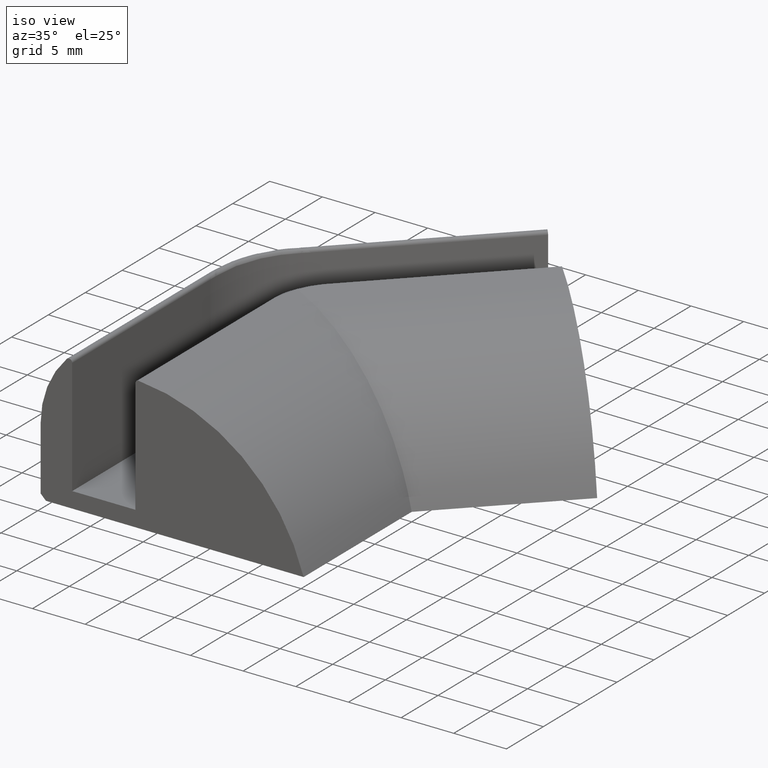
[diagram: clean part render]
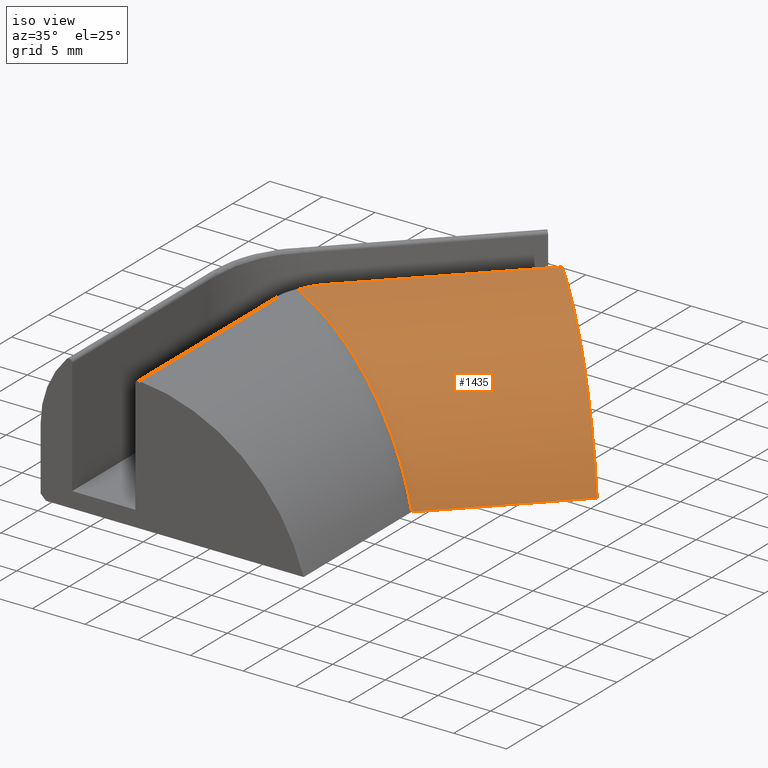
[diagram: same view with one face highlighted and labeled with its STEP entity id]
A machine part, iso view. The second image highlights one B-rep face of the part: STEP entity #1435.
In plain terms, the highlighted cylindrical surface (partial cylindrical patch) has radius 17.7 mm, axis along (-0.7071, -0.7071, 0).
Its self-contained STEP definition (entity closure, byte-faithful):
#272=CARTESIAN_POINT('',(10.356989404636707,10.356989404636707,0.0));
#273=VERTEX_POINT('',#272);
#280=CARTESIAN_POINT('',(0.0,0.0,0.0));
#281=VERTEX_POINT('',#280);
#282=CARTESIAN_POINT('',(8.881784E-015,0.0,0.0));
#283=DIRECTION('',(0.707106781186547,0.707106781186548,0.0));
#284=VECTOR('',#283,14.646994881391674);
#285=LINE('',#282,#284);
#286=EDGE_CURVE('',#281,#273,#285,.T.);
#1140=CARTESIAN_POINT('',(-15.219739060737368,6.304222334736963,12.612332084763196));
#1141=VERTEX_POINT('',#1140);
#1152=CARTESIAN_POINT('',(-13.993748521030184,8.148133626587324,12.650517677420140));
#1153=VERTEX_POINT('',#1152);
#1154=CARTESIAN_POINT('',(-15.219739060737368,6.304222334736963,12.612332084763196));
#1155=CARTESIAN_POINT('',(-15.072938061086631,6.662735374180826,12.627286373338251));
#1156=CARTESIAN_POINT('',(-14.720171073912297,7.321433689050224,12.645405963166333));
#1157=CARTESIAN_POINT('',(-14.245298792915378,7.896583354702145,12.650517677420137));
#1158=CARTESIAN_POINT('',(-13.993748521030184,8.148133626587324,12.650517677420137));
#1159=B_SPLINE_CURVE_WITH_KNOTS('',3,(#1154,#1155,#1156,#1157,#1158),.UNSPECIFIED.,.F.,.U.,(4,1,4),(0.0,1.160131418638293,2.227368836994304),.UNSPECIFIED.);
#1160=EDGE_CURVE('',#1141,#1153,#1159,.T.);
#1301=CARTESIAN_POINT('',(-0.713951669172047,21.427930478445461,12.650517677420133));
#1302=VERTEX_POINT('',#1301);
#1303=CARTESIAN_POINT('',(-13.993748521030190,8.148133626587320,12.650517677420133));
#1304=DIRECTION('',(0.707106781186547,0.707106781186548,0.0));
#1305=VECTOR('',#1304,18.780468813457308);
#1306=LINE('',#1303,#1305);
#1307=EDGE_CURVE('',#1153,#1302,#1306,.T.);
#1411=CARTESIAN_POINT('',(-22.357100160706210,1.654956120265823,-4.999995000000253));
#1412=DIRECTION('',(-0.707106781186547,-0.707106781186548,0.0));
#1413=DIRECTION('',(0.678307352911084,-0.678307352911084,0.282485875706230));
#1414=AXIS2_PLACEMENT_3D('',#1411,#1412,#1413);
#1415=CYLINDRICAL_SURFACE('',#1414,17.699982299999963);
#1416=CARTESIAN_POINT('',(-16.979087826508362,7.032968454463677,-4.999995000000253));
#1417=DIRECTION('',(0.382683432365089,0.923879532511287,0.0));
#1418=DIRECTION('',(-0.923879532511287,0.382683432365089,0.0));
#1419=AXIS2_PLACEMENT_3D('',#1416,#1417,#1418);
#1420=ELLIPSE('',#1419,19.158322786833384,17.699982299999963);
#1421=EDGE_CURVE('',#1141,#281,#1420,.T.);
#1422=ORIENTED_EDGE('',*,*,#1421,.T.);
#1423=ORIENTED_EDGE('',*,*,#286,.T.);
#1424=CARTESIAN_POINT('',(-1.649038735849318,22.363017545122730,-4.999995000000255));
#1425=DIRECTION('',(-0.707106781186548,-0.707106781186548,0.0));
#1426=DIRECTION('',(0.678307352911084,-0.678307352911084,0.282485875706230));
#1427=AXIS2_PLACEMENT_3D('',#1424,#1425,#1426);
#1428=CIRCLE('',#1427,17.699982299999963);
#1429=EDGE_CURVE('',#273,#1302,#1428,.T.);
#1430=ORIENTED_EDGE('',*,*,#1429,.T.);
#1431=ORIENTED_EDGE('',*,*,#1307,.F.);
#1432=ORIENTED_EDGE('',*,*,#1160,.F.);
#1433=EDGE_LOOP('',(#1422,#1423,#1430,#1431,#1432));
#1434=FACE_OUTER_BOUND('',#1433,.T.);
#1435=ADVANCED_FACE('',(#1434),#1415,.T.);